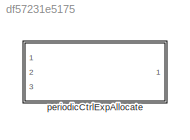
MODEL slx_df57231e5175
KIND library
CONFIG AbsTol = auto
CONFIG EnableMultiTasking = off
CONFIG FixedStep = auto
CONFIG MaxStep = auto
CONFIG MinStep = auto
CONFIG RelTol = 1e-3
CONFIG SampleTimeConstraint = Unconstrained
CONFIG Solver = VariableStepAuto
CONFIG SolverName = VariableStepAuto
CONFIG StartTime = 0.0
CONFIG StopTime = 10.0
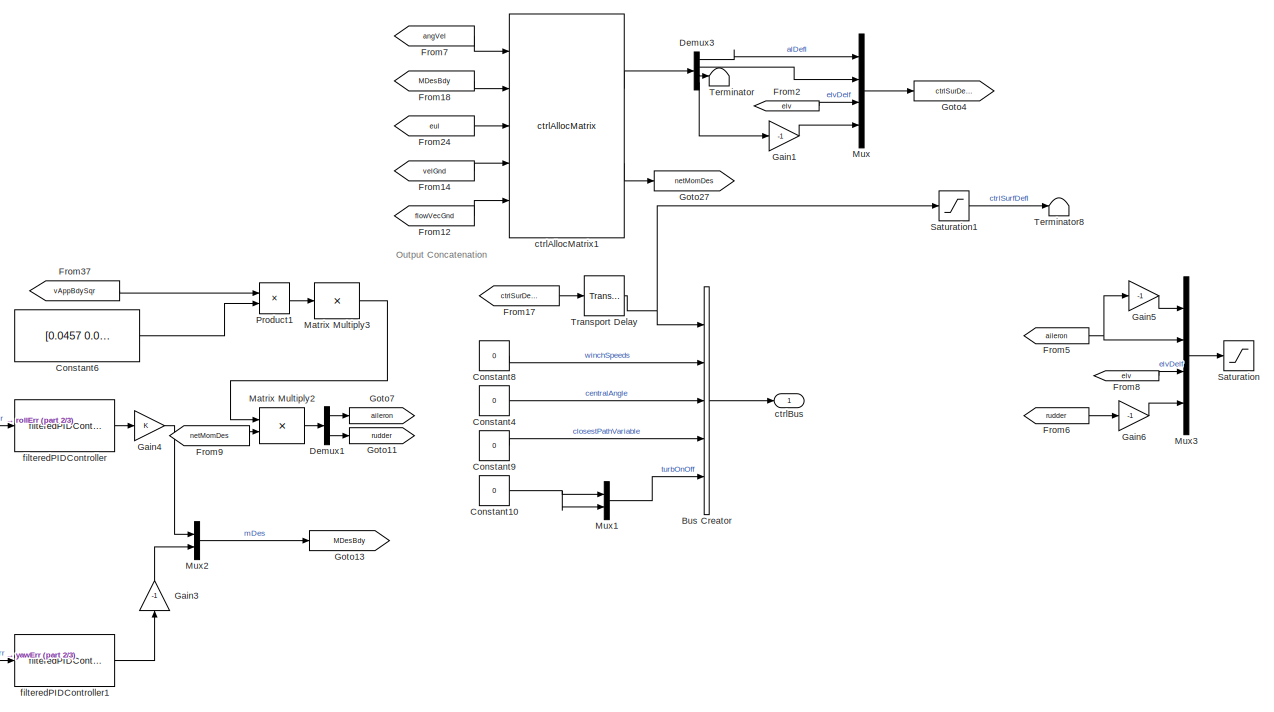
[diagram: periodicCtrlExpAllocate - part 1/3, middle right region]
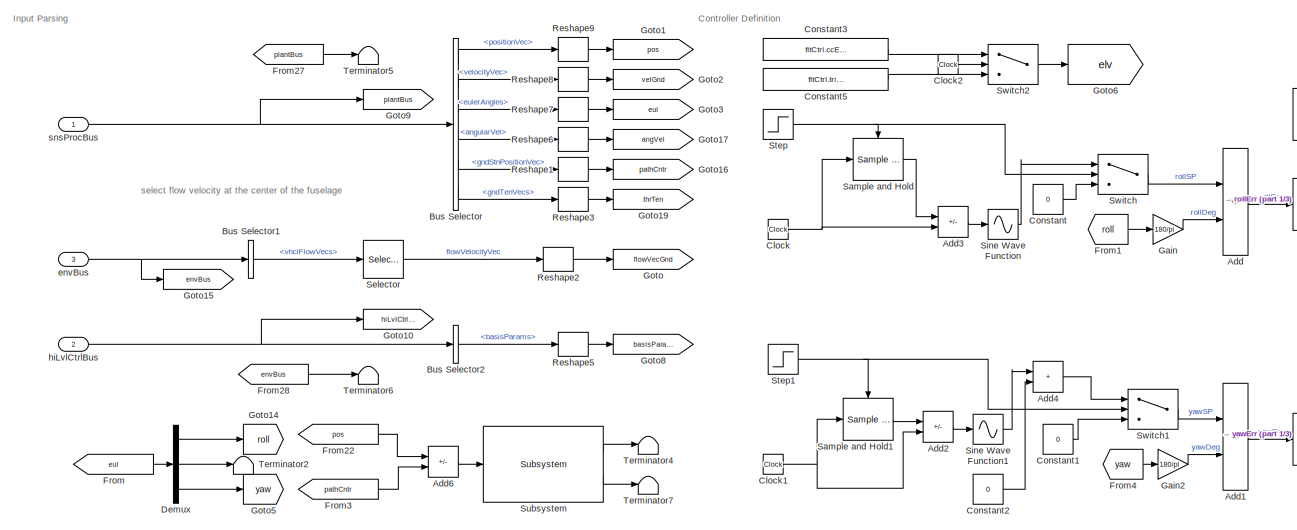
[diagram: periodicCtrlExpAllocate - part 2/3, middle left region]
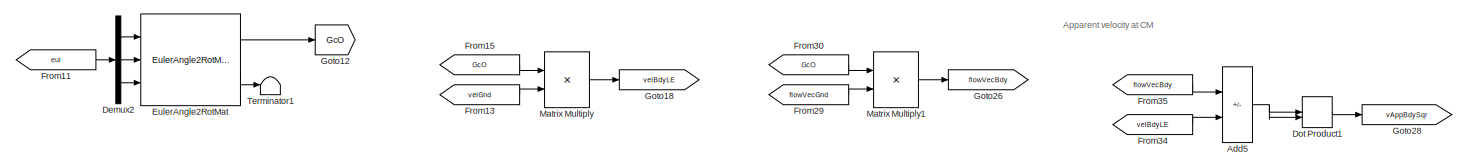
[diagram: periodicCtrlExpAllocate - part 3/3, bottom center region]
BLOCK [SubSystem] periodicCtrlExpAllocate
  InitFcn = initializeBussesFromBlock(gcb)
  LoadFcn = initializeBussesFromBlock(gcb)
  Ports = [3, 1]
  RequestExecContextInheritance = off
BLOCK [Sum] periodicCtrlExpAllocate/Add
  IconShape = rectangular
  Inputs = +-
  Ports = [2, 1]
BLOCK [Sum] periodicCtrlExpAllocate/Add1
  IconShape = rectangular
  Inputs = +-
  Ports = [2, 1]
BLOCK [Sum] periodicCtrlExpAllocate/Add2
  IconShape = rectangular
  Inputs = -+
  Ports = [2, 1]
BLOCK [Sum] periodicCtrlExpAllocate/Add3
  IconShape = rectangular
  Inputs = -+
  Ports = [2, 1]
BLOCK [Sum] periodicCtrlExpAllocate/Add4
  IconShape = rectangular
  Ports = [2, 1]
BLOCK [Sum] periodicCtrlExpAllocate/Add5
  IconShape = rectangular
  Inputs = +-
  Ports = [2, 1]
BLOCK [Sum] periodicCtrlExpAllocate/Add6
  IconShape = rectangular
  Inputs = +-
  Ports = [2, 1]
BLOCK [BusCreator] periodicCtrlExpAllocate/Bus Creator
  DisplayOption = bar
  InheritFromInputs = off
  Inputs = 5
  OutDataTypeStr = Bus: fltCtrlBus
  Ports = [5, 1]
BLOCK [BusSelector] periodicCtrlExpAllocate/Bus Selector
  OutputSignals = positionVec,velocityVec,eulerAngles,angularVel,gndStnPositionVec,gndTenVecs
  Ports = [1, 6]
BLOCK [BusSelector] periodicCtrlExpAllocate/Bus Selector1
  OutputSignals = vhclFlowVecs
  Ports = [1, 1]
BLOCK [BusSelector] periodicCtrlExpAllocate/Bus Selector2
  OutputSignals = basisParams
  Ports = [1, 1]
BLOCK [Clock] periodicCtrlExpAllocate/Clock
BLOCK [Clock] periodicCtrlExpAllocate/Clock1
BLOCK [Clock] periodicCtrlExpAllocate/Clock2
BLOCK [Constant] periodicCtrlExpAllocate/Constant
  Value = 0
BLOCK [Constant] periodicCtrlExpAllocate/Constant1
  Value = 0
BLOCK [Constant] periodicCtrlExpAllocate/Constant10
  Value = 0
BLOCK [Constant] periodicCtrlExpAllocate/Constant2
  Value = 0
BLOCK [Constant] periodicCtrlExpAllocate/Constant3
  Value = fltCtrl.ccElevator.Value
BLOCK [Constant] periodicCtrlExpAllocate/Constant4
  Value = 0
BLOCK [Constant] periodicCtrlExpAllocate/Constant5
  Value = fltCtrl.trimElevator.Value
BLOCK [Constant] periodicCtrlExpAllocate/Constant6
  Value = [0.0457 0.0417; 0.0085 -0.1495]
BLOCK [Constant] periodicCtrlExpAllocate/Constant8
  Value = 0
BLOCK [Constant] periodicCtrlExpAllocate/Constant9
  Value = 0
BLOCK [Demux] periodicCtrlExpAllocate/Demux
  Outputs = 3
  Ports = [1, 3]
BLOCK [Demux] periodicCtrlExpAllocate/Demux1
  Outputs = 2
  Ports = [1, 2]
BLOCK [Demux] periodicCtrlExpAllocate/Demux2
  Outputs = 3
  Ports = [1, 3]
BLOCK [Demux] periodicCtrlExpAllocate/Demux3
  Ports = [1, 4]
BLOCK [DotProduct] periodicCtrlExpAllocate/Dot Product1
  OutDataTypeStr = Inherit: Inherit via internal rule
BLOCK [Reference] periodicCtrlExpAllocate/EulerAngle2RotMat  REF=eulAng2RotMat_ul/EulerAngle2RotMat
  Ports = [3, 2]
  SourceBlock = eulAng2RotMat_ul/EulerAngle2RotMat
  SourceType = SubSystem
BLOCK [From] periodicCtrlExpAllocate/From
  GotoTag = eul
BLOCK [From] periodicCtrlExpAllocate/From1
  GotoTag = roll
BLOCK [From] periodicCtrlExpAllocate/From11
  GotoTag = eul
BLOCK [From] periodicCtrlExpAllocate/From12
  GotoTag = flowVecGnd
BLOCK [From] periodicCtrlExpAllocate/From13
  GotoTag = velGnd
BLOCK [From] periodicCtrlExpAllocate/From14
  GotoTag = velGnd
BLOCK [From] periodicCtrlExpAllocate/From15
  GotoTag = GcO
BLOCK [From] periodicCtrlExpAllocate/From17
  GotoTag = ctrlSurDefl
BLOCK [From] periodicCtrlExpAllocate/From18
  GotoTag = MDesBdy
BLOCK [From] periodicCtrlExpAllocate/From2
  GotoTag = elv
BLOCK [From] periodicCtrlExpAllocate/From22
  GotoTag = pos
BLOCK [From] periodicCtrlExpAllocate/From24
  GotoTag = eul
BLOCK [From] periodicCtrlExpAllocate/From27
  GotoTag = plantBus
BLOCK [From] periodicCtrlExpAllocate/From28
  GotoTag = envBus
BLOCK [From] periodicCtrlExpAllocate/From29
  GotoTag = flowVecGnd
BLOCK [From] periodicCtrlExpAllocate/From3
  GotoTag = pathCntr
BLOCK [From] periodicCtrlExpAllocate/From30
  GotoTag = GcO
BLOCK [From] periodicCtrlExpAllocate/From34
  GotoTag = velBdyLE
BLOCK [From] periodicCtrlExpAllocate/From35
  GotoTag = flowVecBdy
BLOCK [From] periodicCtrlExpAllocate/From37
  GotoTag = vAppBdySqr
BLOCK [From] periodicCtrlExpAllocate/From4
  GotoTag = yaw
BLOCK [From] periodicCtrlExpAllocate/From5
  GotoTag = aileron
BLOCK [From] periodicCtrlExpAllocate/From6
  GotoTag = rudder
BLOCK [From] periodicCtrlExpAllocate/From7
  GotoTag = angVel
BLOCK [From] periodicCtrlExpAllocate/From8
  GotoTag = elv
BLOCK [From] periodicCtrlExpAllocate/From9
  GotoTag = netMomDes
BLOCK [Gain] periodicCtrlExpAllocate/Gain
  Gain = 180/pi
BLOCK [Gain] periodicCtrlExpAllocate/Gain1
  Gain = -1
BLOCK [Gain] periodicCtrlExpAllocate/Gain2
  Gain = 180/pi
BLOCK [Gain] periodicCtrlExpAllocate/Gain3
  Gain = -1
  NameLocation = right
BLOCK [Gain] periodicCtrlExpAllocate/Gain4
BLOCK [Gain] periodicCtrlExpAllocate/Gain5
  Gain = -1
BLOCK [Gain] periodicCtrlExpAllocate/Gain6
  Gain = -1
BLOCK [Goto] periodicCtrlExpAllocate/Goto
  GotoTag = flowVecGnd
BLOCK [Goto] periodicCtrlExpAllocate/Goto1
  GotoTag = pos
BLOCK [Goto] periodicCtrlExpAllocate/Goto10
  Commented = on
  GotoTag = hiLvlCtrlBus
BLOCK [Goto] periodicCtrlExpAllocate/Goto11
  GotoTag = rudder
BLOCK [Goto] periodicCtrlExpAllocate/Goto12
  GotoTag = GcO
BLOCK [Goto] periodicCtrlExpAllocate/Goto13
  GotoTag = MDesBdy
BLOCK [Goto] periodicCtrlExpAllocate/Goto14
  GotoTag = roll
BLOCK [Goto] periodicCtrlExpAllocate/Goto15
  GotoTag = envBus
BLOCK [Goto] periodicCtrlExpAllocate/Goto16
  GotoTag = pathCntr
BLOCK [Goto] periodicCtrlExpAllocate/Goto17
  GotoTag = angVel
BLOCK [Goto] periodicCtrlExpAllocate/Goto18
  GotoTag = velBdyLE
BLOCK [Goto] periodicCtrlExpAllocate/Goto19
  Commented = on
  GotoTag = thrTen
BLOCK [Goto] periodicCtrlExpAllocate/Goto2
  GotoTag = velGnd
BLOCK [Goto] periodicCtrlExpAllocate/Goto26
  GotoTag = flowVecBdy
BLOCK [Goto] periodicCtrlExpAllocate/Goto27
  GotoTag = netMomDes
BLOCK [Goto] periodicCtrlExpAllocate/Goto28
  GotoTag = vAppBdySqr
BLOCK [Goto] periodicCtrlExpAllocate/Goto3
  GotoTag = eul
BLOCK [Goto] periodicCtrlExpAllocate/Goto4
  GotoTag = ctrlSurDefl
BLOCK [Goto] periodicCtrlExpAllocate/Goto5
  GotoTag = yaw
BLOCK [Goto] periodicCtrlExpAllocate/Goto6
  GotoTag = elv
BLOCK [Goto] periodicCtrlExpAllocate/Goto7
  GotoTag = aileron
BLOCK [Goto] periodicCtrlExpAllocate/Goto8
  Commented = on
  GotoTag = basisParams
BLOCK [Goto] periodicCtrlExpAllocate/Goto9
  GotoTag = plantBus
BLOCK [Product] periodicCtrlExpAllocate/Matrix Multiply
  Multiplication = Matrix(*)
  Ports = [2, 1]
BLOCK [Product] periodicCtrlExpAllocate/Matrix Multiply1
  Multiplication = Matrix(*)
  Ports = [2, 1]
BLOCK [Product] periodicCtrlExpAllocate/Matrix Multiply2
  Multiplication = Matrix(*)
  Ports = [2, 1]
BLOCK [Product] periodicCtrlExpAllocate/Matrix Multiply3
  Inputs = /
  Multiplication = Matrix(*)
  Ports = [1, 1]
BLOCK [Mux] periodicCtrlExpAllocate/Mux
  DisplayOption = bar
  Ports = [4, 1]
BLOCK [Mux] periodicCtrlExpAllocate/Mux1
  DisplayOption = bar
  Inputs = 2
  Ports = [2, 1]
BLOCK [Mux] periodicCtrlExpAllocate/Mux2
  DisplayOption = bar
  Inputs = 2
  Ports = [2, 1]
BLOCK [Mux] periodicCtrlExpAllocate/Mux3
  DisplayOption = bar
  Ports = [4, 1]
BLOCK [Product] periodicCtrlExpAllocate/Product1
  Ports = [2, 1]
BLOCK [Reshape] periodicCtrlExpAllocate/Reshape1
  OutputDimensionality = Column vector (2-D)
  Ports = [1, 1]
BLOCK [Reshape] periodicCtrlExpAllocate/Reshape2
  OutputDimensionality = Column vector (2-D)
  Ports = [1, 1]
BLOCK [Reshape] periodicCtrlExpAllocate/Reshape3
  OutputDimensionality = Column vector (2-D)
  Ports = [1, 1]
BLOCK [Reshape] periodicCtrlExpAllocate/Reshape5
  OutputDimensionality = Column vector (2-D)
  Ports = [1, 1]
BLOCK [Reshape] periodicCtrlExpAllocate/Reshape6
  OutputDimensionality = Column vector (2-D)
  Ports = [1, 1]
BLOCK [Reshape] periodicCtrlExpAllocate/Reshape7
  OutputDimensionality = Column vector (2-D)
  Ports = [1, 1]
BLOCK [Reshape] periodicCtrlExpAllocate/Reshape8
  OutputDimensionality = Column vector (2-D)
  Ports = [1, 1]
BLOCK [Reshape] periodicCtrlExpAllocate/Reshape9
  OutputDimensionality = Column vector (2-D)
  Ports = [1, 1]
BLOCK [Reference] periodicCtrlExpAllocate/Sample and Hold  REF=dspsigops/Sample
and Hold
  Ports = [1, 1, 0, 1]
  SourceBlock = dspsigops/Sample\nand Hold
  SourceProductBaseCode = DS
  SourceType = Sample and Hold
BLOCK [Reference] periodicCtrlExpAllocate/Sample and Hold1  REF=dspsigops/Sample
and Hold
  Ports = [1, 1, 0, 1]
  SourceBlock = dspsigops/Sample\nand Hold
  SourceProductBaseCode = DS
  SourceType = Sample and Hold
BLOCK [Saturate] periodicCtrlExpAllocate/Saturation
  LowerLimit = -30
  UpperLimit = 30
BLOCK [Saturate] periodicCtrlExpAllocate/Saturation1
  LowerLimit = -30
  UpperLimit = 30
BLOCK [Selector] periodicCtrlExpAllocate/Selector
  IndexOptions = Select all,Index vector (dialog)
  Indices = [1 3],5
  InputPortWidth = 3
  NumberOfDimensions = 2
  OutputSizes = 1,1
  Ports = [1, 1]
BLOCK [Sin] periodicCtrlExpAllocate/Sine Wave Function
  Amplitude = fltCtrl.rollAmp.Value
  Frequency = fltCtrl.frequency.Value
  Phase = fltCtrl.rollPhase.Value
  Ports = [1, 1]
  SampleTime = 0
  TimeSource = Use external signal
BLOCK [Sin] periodicCtrlExpAllocate/Sine Wave Function1
  Amplitude = fltCtrl.yawAmp.Value
  Frequency = fltCtrl.frequency.Value
  Phase = fltCtrl.yawPhase.Value
  Ports = [1, 1]
  SampleTime = 0
  TimeSource = Use external signal
BLOCK [Step] periodicCtrlExpAllocate/Step
  SampleTime = 0
  Time = fltCtrl.startCtrl.Value
BLOCK [Step] periodicCtrlExpAllocate/Step1
  SampleTime = 0
  Time = fltCtrl.startCtrl.Value
BLOCK [Reference] periodicCtrlExpAllocate/Subsystem  REF=pathFollowingController_cl/pathFollowingController/Subsystem
  Ports = [1, 2]
  SourceBlock = pathFollowingController_cl/pathFollowingController/Subsystem
BLOCK [Switch] periodicCtrlExpAllocate/Switch
  Criteria = u2 > Threshold
  InputSameDT = off
  SaturateOnIntegerOverflow = off
BLOCK [Switch] periodicCtrlExpAllocate/Switch1
  Criteria = u2 > Threshold
  InputSameDT = off
  SaturateOnIntegerOverflow = off
BLOCK [Switch] periodicCtrlExpAllocate/Switch2
  Criteria = u2 > Threshold
  InputSameDT = off
  SaturateOnIntegerOverflow = off
  Threshold = fltCtrl.startCtrl.Value
BLOCK [Terminator] periodicCtrlExpAllocate/Terminator
BLOCK [Terminator] periodicCtrlExpAllocate/Terminator1
BLOCK [Terminator] periodicCtrlExpAllocate/Terminator2
BLOCK [Terminator] periodicCtrlExpAllocate/Terminator4
BLOCK [Terminator] periodicCtrlExpAllocate/Terminator5
BLOCK [Terminator] periodicCtrlExpAllocate/Terminator6
BLOCK [Terminator] periodicCtrlExpAllocate/Terminator7
BLOCK [Terminator] periodicCtrlExpAllocate/Terminator8
BLOCK [TransportDelay] periodicCtrlExpAllocate/Transport Delay
  DelayTime = .060
  Ports = [1, 1]
BLOCK [Reference] periodicCtrlExpAllocate/ctrlAllocMatrix1  REF=ctrlAllocMatrixExp_cl/ctrlAllocMatrix
  Ports = [5, 2]
  SourceBlock = ctrlAllocMatrixExp_cl/ctrlAllocMatrix
BLOCK [Outport] periodicCtrlExpAllocate/ctrlBus
  OutDataTypeStr = Bus: fltCtrlBus
  VectorParamsAs1DForOutWhenUnconnected = off
BLOCK [Inport] periodicCtrlExpAllocate/envBus
  OutDataTypeStr = Bus: envBus
  Port = 3
BLOCK [Reference] periodicCtrlExpAllocate/filteredPIDController  REF=filteredPIDController_ul/filteredPIDController
  Ports = [1, 1]
  SourceBlock = filteredPIDController_ul/filteredPIDController
BLOCK [Reference] periodicCtrlExpAllocate/filteredPIDController1  REF=filteredPIDController_ul/filteredPIDController
  Ports = [1, 1]
  SourceBlock = filteredPIDController_ul/filteredPIDController
BLOCK [Inport] periodicCtrlExpAllocate/hiLvlCtrlBus
  OutDataTypeStr = Bus: hiLvlCtrlBus
  Port = 2
BLOCK [Inport] periodicCtrlExpAllocate/snsProcBus
  OutDataTypeStr = Bus: sensorsProcessingBus
ANNOTATION periodicCtrlExpAllocate: Apparent velocity at CM
ANNOTATION periodicCtrlExpAllocate: Controller Definition
ANNOTATION periodicCtrlExpAllocate: Input Parsing
ANNOTATION periodicCtrlExpAllocate: Output Concatenation
ANNOTATION periodicCtrlExpAllocate: select flow velocity at the center of the fuselage
LINE periodicCtrlExpAllocate/Add1:1 -> periodicCtrlExpAllocate/filteredPIDController1:1
LINE periodicCtrlExpAllocate/Add2:1 -> periodicCtrlExpAllocate/Sine Wave Function1:1
LINE periodicCtrlExpAllocate/Add3:1 -> periodicCtrlExpAllocate/Sine Wave Function:1
LINE periodicCtrlExpAllocate/Add4:1 -> periodicCtrlExpAllocate/Switch1:1
NET periodicCtrlExpAllocate/Add5:1 -> periodicCtrlExpAllocate/Dot Product1:1, periodicCtrlExpAllocate/Dot Product1:2
LINE periodicCtrlExpAllocate/Add6:1 -> periodicCtrlExpAllocate/Subsystem:1
LINE periodicCtrlExpAllocate/Add:1 -> periodicCtrlExpAllocate/filteredPIDController:1
LINE periodicCtrlExpAllocate/Bus Creator:1 -> periodicCtrlExpAllocate/ctrlBus:1
LINE periodicCtrlExpAllocate/Bus Selector1:1 -> periodicCtrlExpAllocate/Selector:1
LINE periodicCtrlExpAllocate/Bus Selector2:1 -> periodicCtrlExpAllocate/Reshape5:1
LINE periodicCtrlExpAllocate/Bus Selector:1 -> periodicCtrlExpAllocate/Reshape9:1
LINE periodicCtrlExpAllocate/Bus Selector:2 -> periodicCtrlExpAllocate/Reshape8:1
LINE periodicCtrlExpAllocate/Bus Selector:3 -> periodicCtrlExpAllocate/Reshape7:1
LINE periodicCtrlExpAllocate/Bus Selector:4 -> periodicCtrlExpAllocate/Reshape6:1
LINE periodicCtrlExpAllocate/Bus Selector:5 -> periodicCtrlExpAllocate/Reshape1:1
LINE periodicCtrlExpAllocate/Bus Selector:6 -> periodicCtrlExpAllocate/Reshape3:1
NET periodicCtrlExpAllocate/Clock1:1 -> periodicCtrlExpAllocate/Add2:2, periodicCtrlExpAllocate/Sample and Hold1:1
LINE periodicCtrlExpAllocate/Clock2:1 -> periodicCtrlExpAllocate/Switch2:2
NET periodicCtrlExpAllocate/Clock:1 -> periodicCtrlExpAllocate/Add3:2, periodicCtrlExpAllocate/Sample and Hold:1
NET periodicCtrlExpAllocate/Constant10:1 -> periodicCtrlExpAllocate/Mux1:1, periodicCtrlExpAllocate/Mux1:2
LINE periodicCtrlExpAllocate/Constant1:1 -> periodicCtrlExpAllocate/Switch1:3
LINE periodicCtrlExpAllocate/Constant2:1 -> periodicCtrlExpAllocate/Add4:2
LINE periodicCtrlExpAllocate/Constant3:1 -> periodicCtrlExpAllocate/Switch2:1
LINE periodicCtrlExpAllocate/Constant4:1 -> periodicCtrlExpAllocate/Bus Creator:3
LINE periodicCtrlExpAllocate/Constant5:1 -> periodicCtrlExpAllocate/Switch2:3
LINE periodicCtrlExpAllocate/Constant6:1 -> periodicCtrlExpAllocate/Product1:2
LINE periodicCtrlExpAllocate/Constant8:1 -> periodicCtrlExpAllocate/Bus Creator:2
LINE periodicCtrlExpAllocate/Constant9:1 -> periodicCtrlExpAllocate/Bus Creator:4
LINE periodicCtrlExpAllocate/Constant:1 -> periodicCtrlExpAllocate/Switch:3
LINE periodicCtrlExpAllocate/Demux1:1 -> periodicCtrlExpAllocate/Goto7:1
LINE periodicCtrlExpAllocate/Demux1:2 -> periodicCtrlExpAllocate/Goto11:1
LINE periodicCtrlExpAllocate/Demux2:1 -> periodicCtrlExpAllocate/EulerAngle2RotMat:1
LINE periodicCtrlExpAllocate/Demux2:2 -> periodicCtrlExpAllocate/EulerAngle2RotMat:2
LINE periodicCtrlExpAllocate/Demux2:3 -> periodicCtrlExpAllocate/EulerAngle2RotMat:3
LINE periodicCtrlExpAllocate/Demux3:1 -> periodicCtrlExpAllocate/Mux:1
LINE periodicCtrlExpAllocate/Demux3:2 -> periodicCtrlExpAllocate/Mux:2
LINE periodicCtrlExpAllocate/Demux3:3 -> periodicCtrlExpAllocate/Terminator:1
LINE periodicCtrlExpAllocate/Demux3:4 -> periodicCtrlExpAllocate/Gain1:1
LINE periodicCtrlExpAllocate/Demux:1 -> periodicCtrlExpAllocate/Goto14:1
LINE periodicCtrlExpAllocate/Demux:2 -> periodicCtrlExpAllocate/Terminator2:1
LINE periodicCtrlExpAllocate/Demux:3 -> periodicCtrlExpAllocate/Goto5:1
LINE periodicCtrlExpAllocate/Dot Product1:1 -> periodicCtrlExpAllocate/Goto28:1
LINE periodicCtrlExpAllocate/EulerAngle2RotMat:1 -> periodicCtrlExpAllocate/Goto12:1
LINE periodicCtrlExpAllocate/EulerAngle2RotMat:2 -> periodicCtrlExpAllocate/Terminator1:1
LINE periodicCtrlExpAllocate/From11:1 -> periodicCtrlExpAllocate/Demux2:1
LINE periodicCtrlExpAllocate/From12:1 -> periodicCtrlExpAllocate/ctrlAllocMatrix1:5
LINE periodicCtrlExpAllocate/From13:1 -> periodicCtrlExpAllocate/Matrix Multiply:2
LINE periodicCtrlExpAllocate/From14:1 -> periodicCtrlExpAllocate/ctrlAllocMatrix1:4
LINE periodicCtrlExpAllocate/From15:1 -> periodicCtrlExpAllocate/Matrix Multiply:1
LINE periodicCtrlExpAllocate/From17:1 -> periodicCtrlExpAllocate/Transport Delay:1
LINE periodicCtrlExpAllocate/From18:1 -> periodicCtrlExpAllocate/ctrlAllocMatrix1:2
LINE periodicCtrlExpAllocate/From1:1 -> periodicCtrlExpAllocate/Gain:1
LINE periodicCtrlExpAllocate/From22:1 -> periodicCtrlExpAllocate/Add6:1
LINE periodicCtrlExpAllocate/From24:1 -> periodicCtrlExpAllocate/ctrlAllocMatrix1:3
LINE periodicCtrlExpAllocate/From27:1 -> periodicCtrlExpAllocate/Terminator5:1
LINE periodicCtrlExpAllocate/From28:1 -> periodicCtrlExpAllocate/Terminator6:1
LINE periodicCtrlExpAllocate/From29:1 -> periodicCtrlExpAllocate/Matrix Multiply1:2
LINE periodicCtrlExpAllocate/From2:1 -> periodicCtrlExpAllocate/Mux:3
LINE periodicCtrlExpAllocate/From30:1 -> periodicCtrlExpAllocate/Matrix Multiply1:1
LINE periodicCtrlExpAllocate/From34:1 -> periodicCtrlExpAllocate/Add5:2
LINE periodicCtrlExpAllocate/From35:1 -> periodicCtrlExpAllocate/Add5:1
LINE periodicCtrlExpAllocate/From37:1 -> periodicCtrlExpAllocate/Product1:1
LINE periodicCtrlExpAllocate/From3:1 -> periodicCtrlExpAllocate/Add6:2
LINE periodicCtrlExpAllocate/From4:1 -> periodicCtrlExpAllocate/Gain2:1
NET periodicCtrlExpAllocate/From5:1 -> periodicCtrlExpAllocate/Gain5:1, periodicCtrlExpAllocate/Mux3:2
LINE periodicCtrlExpAllocate/From6:1 -> periodicCtrlExpAllocate/Gain6:1
LINE periodicCtrlExpAllocate/From7:1 -> periodicCtrlExpAllocate/ctrlAllocMatrix1:1
LINE periodicCtrlExpAllocate/From8:1 -> periodicCtrlExpAllocate/Mux3:3
LINE periodicCtrlExpAllocate/From9:1 -> periodicCtrlExpAllocate/Matrix Multiply2:2
LINE periodicCtrlExpAllocate/From:1 -> periodicCtrlExpAllocate/Demux:1
LINE periodicCtrlExpAllocate/Gain1:1 -> periodicCtrlExpAllocate/Mux:4
LINE periodicCtrlExpAllocate/Gain2:1 -> periodicCtrlExpAllocate/Add1:2
LINE periodicCtrlExpAllocate/Gain3:1 -> periodicCtrlExpAllocate/Mux2:2
LINE periodicCtrlExpAllocate/Gain4:1 -> periodicCtrlExpAllocate/Mux2:1
LINE periodicCtrlExpAllocate/Gain5:1 -> periodicCtrlExpAllocate/Mux3:1
LINE periodicCtrlExpAllocate/Gain6:1 -> periodicCtrlExpAllocate/Mux3:4
LINE periodicCtrlExpAllocate/Gain:1 -> periodicCtrlExpAllocate/Add:2
LINE periodicCtrlExpAllocate/Matrix Multiply1:1 -> periodicCtrlExpAllocate/Goto26:1
LINE periodicCtrlExpAllocate/Matrix Multiply2:1 -> periodicCtrlExpAllocate/Demux1:1
LINE periodicCtrlExpAllocate/Matrix Multiply3:1 -> periodicCtrlExpAllocate/Matrix Multiply2:1
LINE periodicCtrlExpAllocate/Matrix Multiply:1 -> periodicCtrlExpAllocate/Goto18:1
LINE periodicCtrlExpAllocate/Mux1:1 -> periodicCtrlExpAllocate/Bus Creator:5
LINE periodicCtrlExpAllocate/Mux2:1 -> periodicCtrlExpAllocate/Goto13:1
LINE periodicCtrlExpAllocate/Mux3:1 -> periodicCtrlExpAllocate/Saturation:1
LINE periodicCtrlExpAllocate/Mux:1 -> periodicCtrlExpAllocate/Goto4:1
LINE periodicCtrlExpAllocate/Product1:1 -> periodicCtrlExpAllocate/Matrix Multiply3:1
LINE periodicCtrlExpAllocate/Reshape1:1 -> periodicCtrlExpAllocate/Goto16:1
LINE periodicCtrlExpAllocate/Reshape2:1 -> periodicCtrlExpAllocate/Goto:1
LINE periodicCtrlExpAllocate/Reshape3:1 -> periodicCtrlExpAllocate/Goto19:1
LINE periodicCtrlExpAllocate/Reshape5:1 -> periodicCtrlExpAllocate/Goto8:1
LINE periodicCtrlExpAllocate/Reshape6:1 -> periodicCtrlExpAllocate/Goto17:1
LINE periodicCtrlExpAllocate/Reshape7:1 -> periodicCtrlExpAllocate/Goto3:1
LINE periodicCtrlExpAllocate/Reshape8:1 -> periodicCtrlExpAllocate/Goto2:1
LINE periodicCtrlExpAllocate/Reshape9:1 -> periodicCtrlExpAllocate/Goto1:1
LINE periodicCtrlExpAllocate/Sample and Hold1:1 -> periodicCtrlExpAllocate/Add2:1
LINE periodicCtrlExpAllocate/Sample and Hold:1 -> periodicCtrlExpAllocate/Add3:1
LINE periodicCtrlExpAllocate/Saturation1:1 -> periodicCtrlExpAllocate/Terminator8:1
LINE periodicCtrlExpAllocate/Selector:1 -> periodicCtrlExpAllocate/Reshape2:1
LINE periodicCtrlExpAllocate/Sine Wave Function1:1 -> periodicCtrlExpAllocate/Add4:1
LINE periodicCtrlExpAllocate/Sine Wave Function:1 -> periodicCtrlExpAllocate/Switch:1
NET periodicCtrlExpAllocate/Step1:1 -> periodicCtrlExpAllocate/Sample and Hold1:trigger, periodicCtrlExpAllocate/Switch1:2
NET periodicCtrlExpAllocate/Step:1 -> periodicCtrlExpAllocate/Sample and Hold:trigger, periodicCtrlExpAllocate/Switch:2
LINE periodicCtrlExpAllocate/Subsystem:1 -> periodicCtrlExpAllocate/Terminator4:1
LINE periodicCtrlExpAllocate/Subsystem:2 -> periodicCtrlExpAllocate/Terminator7:1
LINE periodicCtrlExpAllocate/Switch1:1 -> periodicCtrlExpAllocate/Add1:1
LINE periodicCtrlExpAllocate/Switch2:1 -> periodicCtrlExpAllocate/Goto6:1
LINE periodicCtrlExpAllocate/Switch:1 -> periodicCtrlExpAllocate/Add:1
NET periodicCtrlExpAllocate/Transport Delay:1 -> periodicCtrlExpAllocate/Bus Creator:1, periodicCtrlExpAllocate/Saturation1:1
LINE periodicCtrlExpAllocate/ctrlAllocMatrix1:1 -> periodicCtrlExpAllocate/Demux3:1
LINE periodicCtrlExpAllocate/ctrlAllocMatrix1:2 -> periodicCtrlExpAllocate/Goto27:1
NET periodicCtrlExpAllocate/envBus:1 -> periodicCtrlExpAllocate/Bus Selector1:1, periodicCtrlExpAllocate/Goto15:1
LINE periodicCtrlExpAllocate/filteredPIDController1:1 -> periodicCtrlExpAllocate/Gain3:1
LINE periodicCtrlExpAllocate/filteredPIDController:1 -> periodicCtrlExpAllocate/Gain4:1
NET periodicCtrlExpAllocate/hiLvlCtrlBus:1 -> periodicCtrlExpAllocate/Bus Selector2:1, periodicCtrlExpAllocate/Goto10:1
NET periodicCtrlExpAllocate/snsProcBus:1 -> periodicCtrlExpAllocate/Bus Selector:1, periodicCtrlExpAllocate/Goto9:1
note: NET lines group one-source signal fan-out (src -> all destinations, sorted); 1:1 wires keep LINE
